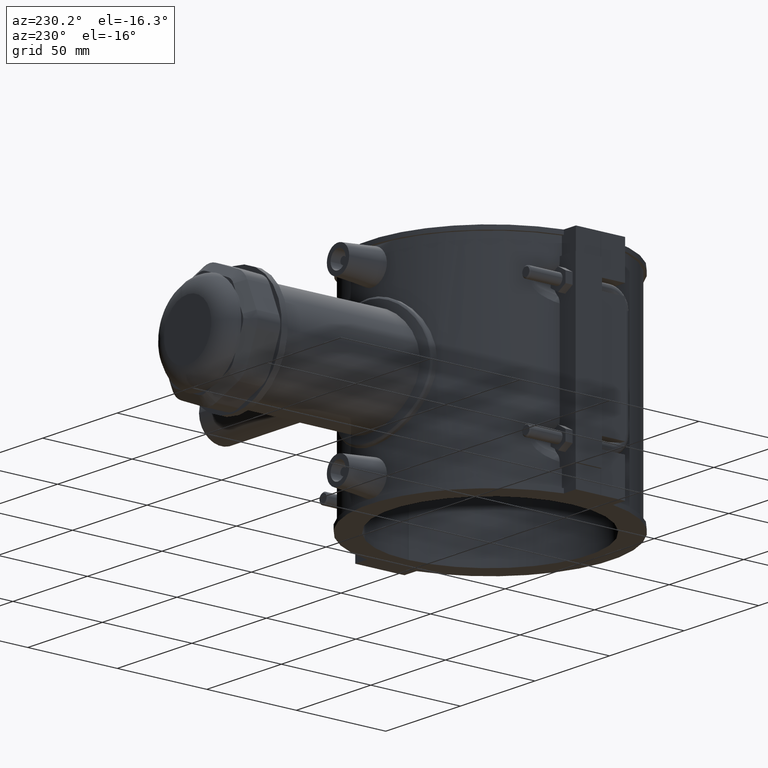
[diagram: clean part render]
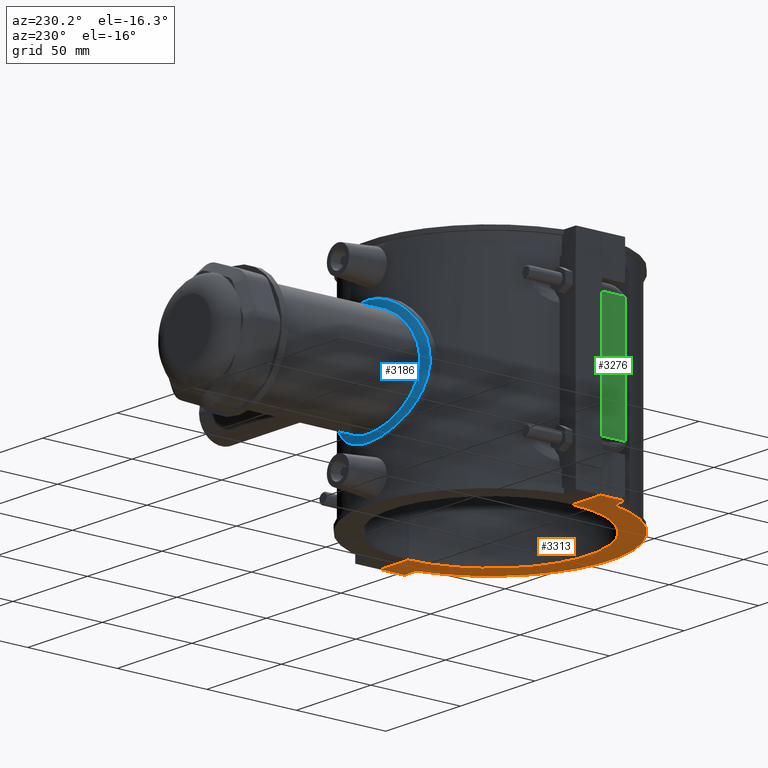
[diagram: same view with three faces highlighted in distinct colors, each labeled with its STEP entity id]
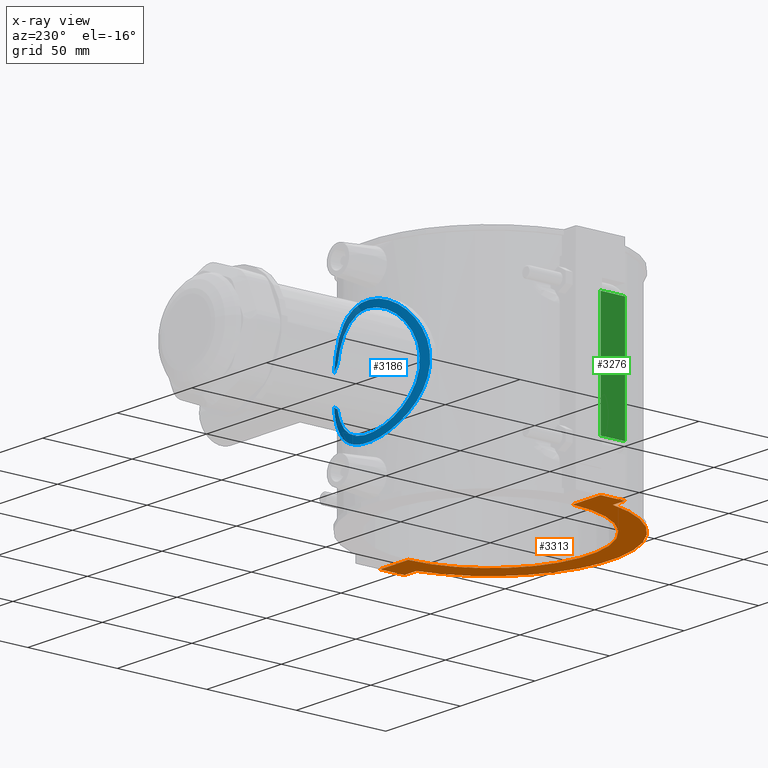
[diagram: x-ray of the same camera — body ghosted, the three highlighted faces saturated]
A machine part, auxiliary view with three faces highlighted in distinct colors.
The next image is the same camera in x-ray (body ghosted, the three faces saturated) — at least one of them is partly hidden behind the body in this view.
Their STEP definitions:

[orange] entity #3313 — the highlighted planar face has unit normal (0, 0, 1).
#124=LINE('',#5490,#411);
#143=LINE('',#5676,#430);
#269=LINE('',#6396,#556);
#310=LINE('',#6686,#597);
#315=LINE('',#6695,#602);
#318=LINE('',#6705,#605);
#411=VECTOR('',#3920,8.09916616612503);
#430=VECTOR('',#3973,8.09916616612502);
#556=VECTOR('',#4307,13.7);
#597=VECTOR('',#4444,19.0000227272774);
#602=VECTOR('',#4453,13.7);
#605=VECTOR('',#4466,19.0000227272775);
#721=PLANE('',#3607);
#772=CIRCLE('',#3424,67.32);
#837=CIRCLE('',#3605,55.);
#1071=FACE_OUTER_BOUND('',#1308,.T.);
#1308=EDGE_LOOP('',(#3011,#3012,#3013,#3014,#3015,#3016,#3017,#3018));
#1471=VERTEX_POINT('',#5419);
#1472=VERTEX_POINT('',#5420);
#1492=VERTEX_POINT('',#5488);
#1521=VERTEX_POINT('',#5675);
#1644=VERTEX_POINT('',#6394);
#1682=VERTEX_POINT('',#6683);
#1683=VERTEX_POINT('',#6685);
#1686=VERTEX_POINT('',#6699);
#1824=EDGE_CURVE('',#1471,#1472,#772,.T.);
#1848=EDGE_CURVE('',#1471,#1492,#124,.T.);
#1883=EDGE_CURVE('',#1521,#1472,#143,.T.);
#2064=EDGE_CURVE('',#1492,#1644,#269,.T.);
#2130=EDGE_CURVE('',#1683,#1682,#310,.T.);
#2135=EDGE_CURVE('',#1682,#1521,#315,.T.);
#2137=EDGE_CURVE('',#1686,#1683,#837,.T.);
#2140=EDGE_CURVE('',#1644,#1686,#318,.T.);
#3011=ORIENTED_EDGE('',*,*,#2130,.T.);
#3012=ORIENTED_EDGE('',*,*,#2135,.T.);
#3013=ORIENTED_EDGE('',*,*,#1883,.T.);
#3014=ORIENTED_EDGE('',*,*,#1824,.F.);
#3015=ORIENTED_EDGE('',*,*,#1848,.T.);
#3016=ORIENTED_EDGE('',*,*,#2064,.T.);
#3017=ORIENTED_EDGE('',*,*,#2140,.T.);
#3018=ORIENTED_EDGE('',*,*,#2137,.T.);
#3313=ADVANCED_FACE('',(#1071),#721,.F.);
#3424=AXIS2_PLACEMENT_3D('',#5421,#3887,#3888);
#3605=AXIS2_PLACEMENT_3D('',#6700,#4459,#4460);
#3607=AXIS2_PLACEMENT_3D('',#6704,#4464,#4465);
#3887=DIRECTION('center_axis',(0.,0.,1.));
#3888=DIRECTION('ref_axis',(-0.97891910032494,-0.204248366013072,0.));
#3920=DIRECTION('',(-1.,0.,0.));
#3973=DIRECTION('',(-1.,0.,0.));
#4307=DIRECTION('',(0.,1.,0.));
#4444=DIRECTION('',(1.,5.27449705533489E-17,0.));
#4453=DIRECTION('',(0.,-1.,0.));
#4459=DIRECTION('center_axis',(0.,0.,1.));
#4460=DIRECTION('ref_axis',(-1.,0.,0.));
#4464=DIRECTION('center_axis',(0.,0.,1.));
#4465=DIRECTION('ref_axis',(1.,0.,0.));
#4466=DIRECTION('',(1.,5.27449705533489E-17,0.));
#5419=CARTESIAN_POINT('',(-65.900833833875,-13.75,-59.));
#5420=CARTESIAN_POINT('',(65.900833833875,-13.75,-59.));
#5421=CARTESIAN_POINT('Origin',(0.,0.,-59.));
#5488=CARTESIAN_POINT('',(-74.,-13.75,-59.));
#5490=CARTESIAN_POINT('',(-74.,-13.75,-59.));
#5675=CARTESIAN_POINT('',(74.,-13.75,-59.));
#5676=CARTESIAN_POINT('',(64.5518202686803,-13.75,-59.));
#6394=CARTESIAN_POINT('',(-74.,-0.0500000000000078,-59.));
#6396=CARTESIAN_POINT('',(-74.,13.75,-59.));
#6683=CARTESIAN_POINT('',(74.,-0.05,-59.));
#6685=CARTESIAN_POINT('',(54.9999772727226,-0.050000000000001,-59.));
#6686=CARTESIAN_POINT('',(-72.0235519553924,-0.0500000000000077,-59.));
#6695=CARTESIAN_POINT('',(74.,-13.75,-59.));
#6699=CARTESIAN_POINT('',(-54.9999772727226,-0.0500000000000068,-59.));
#6700=CARTESIAN_POINT('Origin',(0.,0.,-59.));
#6704=CARTESIAN_POINT('Origin',(-70.0471039107848,-1.214036024795E-16,-59.));
#6705=CARTESIAN_POINT('',(-72.0235519553924,-0.0500000000000077,-59.));

[blue] entity #3186 — the highlighted cylindrical surface (partial cylindrical patch) has radius 68.64 mm, axis along (0, 0, -1).
#944=FACE_OUTER_BOUND('',#1142,.T.);
#1142=EDGE_LOOP('',(#2385,#2386,#2387,#2388));
#1323=B_SPLINE_CURVE_WITH_KNOTS('',3,(#4606,#4607,#4608,#4609,#4610,#4611),
 .UNSPECIFIED.,.F.,.F.,(4,2,4),(3.58212765097517,3.84092007126623,4.2018629553767),
 .UNSPECIFIED.);
#1327=B_SPLINE_CURVE_WITH_KNOTS('',3,(#4642,#4643,#4644,#4645,#4646,#4647),
 .UNSPECIFIED.,.F.,.F.,(4,2,4),(1.12879111958315,1.48973400369362,1.74852642303979),
 .UNSPECIFIED.);
#1338=B_SPLINE_CURVE_WITH_KNOTS('',3,(#4991,#4992,#4993,#4994,#4995,#4996,
#4997,#4998,#4999,#5000,#5001,#5002,#5003,#5004,#5005,#5006,#5007,#5008,
#5009,#5010,#5011,#5012,#5013,#5014,#5015,#5016,#5017,#5018,#5019,#5020,
#5021,#5022,#5023,#5024,#5025,#5026,#5027,#5028,#5029,#5030,#5031,#5032,
#5033,#5034,#5035,#5036,#5037,#5038,#5039,#5040,#5041,#5042,#5043,#5044,
#5045,#5046,#5047,#5048,#5049,#5050,#5051,#5052),.UNSPECIFIED.,.F.,.F.,
(4,2,2,2,2,2,2,2,2,2,2,2,2,2,2,2,2,2,2,2,2,2,2,2,2,2,2,2,2,2,4),(0.984238996678811,
1.07094999104106,1.60642498656158,2.14189998208211,2.67678046713176,3.21166095218141,
3.74654143723105,4.2814219222807,4.81630240733035,5.35118289237999,5.88606337742964,
6.42094386247929,6.95641885799982,7.49189385352034,8.02736884904087,8.5628438445614,
9.09831884008193,9.63379383560246,10.169268831123,10.7047438266435,11.2396243116932,
11.7745047967428,12.3093852817925,12.8442657668421,13.3791462518917,13.9140267369414,
14.448907221991,14.9837877070407,15.5192627025612,16.0547376980817,16.141448692444),
 .UNSPECIFIED.);
#1339=B_SPLINE_CURVE_WITH_KNOTS('',3,(#5060,#5061,#5062,#5063,#5064,#5065,
#5066,#5067,#5068,#5069,#5070,#5071,#5072,#5073,#5074,#5075,#5076,#5077,
#5078,#5079),.UNSPECIFIED.,.F.,.F.,(4,1,1,1,1,1,1,1,1,1,1,1,1,1,1,1,1,4),
(10.8826752994598,12.0326532739031,13.4040201504067,14.3182647347425,15.2325093190782,
16.146753903414,17.0609984877497,18.8894876564212,19.803732240757,20.7179768250927,
21.6322214094285,22.5464659937643,24.3749551624358,25.0606386006876,25.7463220389394,
27.117688915443,28.4890557919467,29.6390250325431),.UNSPECIFIED.);
#1385=VERTEX_POINT('',#4604);
#1386=VERTEX_POINT('',#4605);
#1389=VERTEX_POINT('',#4632);
#1390=VERTEX_POINT('',#4641);
#1694=EDGE_CURVE('',#1385,#1386,#1323,.T.);
#1698=EDGE_CURVE('',#1390,#1389,#1327,.T.);
#1809=EDGE_CURVE('',#1386,#1390,#1338,.T.);
#1812=EDGE_CURVE('',#1385,#1389,#1339,.T.);
#2385=ORIENTED_EDGE('',*,*,#1694,.T.);
#2386=ORIENTED_EDGE('',*,*,#1809,.T.);
#2387=ORIENTED_EDGE('',*,*,#1698,.T.);
#2388=ORIENTED_EDGE('',*,*,#1812,.F.);
#3101=CYLINDRICAL_SURFACE('',#3415,68.64);
#3186=ADVANCED_FACE('',(#944),#3101,.T.);
#3415=AXIS2_PLACEMENT_3D('',#5059,#3865,#3866);
#3865=DIRECTION('center_axis',(0.,0.,-1.));
#3866=DIRECTION('ref_axis',(1.,0.,0.));
#4604=CARTESIAN_POINT('',(31.5188204360374,60.9755160566106,7.46724324508663));
#4605=CARTESIAN_POINT('',(26.2264485236546,63.4320344765647,9.94866311803225));
#4606=CARTESIAN_POINT('Ctrl Pts',(31.5188204353698,60.9755160565527,7.46724324416768));
#4607=CARTESIAN_POINT('Ctrl Pts',(30.8650327347673,61.3134650969353,7.92092670113345));
#4608=CARTESIAN_POINT('Ctrl Pts',(30.1703873509176,61.6591128290836,8.32138514846382));
#4609=CARTESIAN_POINT('Ctrl Pts',(28.4278581528542,62.4865480733675,9.17893356501243));
#4610=CARTESIAN_POINT('Ctrl Pts',(27.3490759122359,62.9678757961625,9.59557679386871));
#4611=CARTESIAN_POINT('Ctrl Pts',(26.2264485236546,63.4320344765647,9.94866311803225));
#4632=CARTESIAN_POINT('',(31.5188204329857,60.9755160606682,-7.46724325571075));
#4641=CARTESIAN_POINT('',(26.2264485236546,63.4320344765647,-9.94866311803225));
#4642=CARTESIAN_POINT('Ctrl Pts',(26.2264485236546,63.4320344765647,-9.94866311803225));
#4643=CARTESIAN_POINT('Ctrl Pts',(27.3490759122359,62.9678757961625,-9.59557679386871));
#4644=CARTESIAN_POINT('Ctrl Pts',(28.4278581528542,62.4865480733675,-9.17893356501243));
#4645=CARTESIAN_POINT('Ctrl Pts',(30.1703873482608,61.6591128303452,-8.3213851497713));
#4646=CARTESIAN_POINT('Ctrl Pts',(30.8650327296942,61.3134650994603,-7.92092670405384));
#4647=CARTESIAN_POINT('Ctrl Pts',(31.5188204282094,60.975516060254,-7.46724324913645));
#4991=CARTESIAN_POINT('Ctrl Pts',(26.2264485236546,63.4320344765647,9.94866311803225));
#4992=CARTESIAN_POINT('Ctrl Pts',(26.1190794966835,63.4764270028668,10.2317070029727));
#4993=CARTESIAN_POINT('Ctrl Pts',(26.0071574065999,63.5223831196451,10.5129314095541));
#4994=CARTESIAN_POINT('Ctrl Pts',(25.1722044601463,63.8624436142823,12.5160298841102));
#4995=CARTESIAN_POINT('Ctrl Pts',(24.2809773807116,64.2111557025325,14.1634166312882));
#4996=CARTESIAN_POINT('Ctrl Pts',(22.2293189751007,64.949948089958,17.2053948363863));
#4997=CARTESIAN_POINT('Ctrl Pts',(21.0686712481424,65.3392918428761,18.6000191764229));
#4998=CARTESIAN_POINT('Ctrl Pts',(18.6013895854222,66.0840115530985,21.0673008391431));
#4999=CARTESIAN_POINT('Ctrl Pts',(17.207425337375,66.4664993345299,22.2277720225151));
#5000=CARTESIAN_POINT('Ctrl Pts',(14.1651134136769,67.1806563116482,24.2800102543657));
#5001=CARTESIAN_POINT('Ctrl Pts',(12.5167298978471,67.5117170012429,25.1719358773633));
#5002=CARTESIAN_POINT('Ctrl Pts',(9.06683376455748,68.0609505229705,26.6099120969118));
#5003=CARTESIAN_POINT('Ctrl Pts',(7.26220673460187,68.2791829111509,27.1571059765315));
#5004=CARTESIAN_POINT('Ctrl Pts',(3.62028607889232,68.5687975275982,27.8772591980051));
#5005=CARTESIAN_POINT('Ctrl Pts',(1.78293495016549,68.64,28.05));
#5006=CARTESIAN_POINT('Ctrl Pts',(-1.78293495016549,68.64,28.05));
#5007=CARTESIAN_POINT('Ctrl Pts',(-3.62028607889232,68.5687975275982,27.8772591980051));
#5008=CARTESIAN_POINT('Ctrl Pts',(-7.26220673460187,68.2791829111509,27.1571059765315));
#5009=CARTESIAN_POINT('Ctrl Pts',(-9.06683376455748,68.0609505229705,26.6099120969118));
#5010=CARTESIAN_POINT('Ctrl Pts',(-12.5167298978471,67.5117170012429,25.1719358773633));
#5011=CARTESIAN_POINT('Ctrl Pts',(-14.1651134136769,67.1806563116482,24.2800102543657));
#5012=CARTESIAN_POINT('Ctrl Pts',(-17.207425337375,66.4664993345299,22.2277720225151));
#5013=CARTESIAN_POINT('Ctrl Pts',(-18.6013895854222,66.0840115530985,21.0673008391431));
#5014=CARTESIAN_POINT('Ctrl Pts',(-21.0686712481424,65.3392918428761,18.6000191764229));
#5015=CARTESIAN_POINT('Ctrl Pts',(-22.2293189751007,64.949948089958,17.2053948363863));
#5016=CARTESIAN_POINT('Ctrl Pts',(-24.2809773807116,64.2111557025325,14.1634166312882));
#5017=CARTESIAN_POINT('Ctrl Pts',(-25.1722044601463,63.8624436142823,12.5160298841102));
#5018=CARTESIAN_POINT('Ctrl Pts',(-26.6093838005115,63.2771077346465,9.06815685536448));
#5019=CARTESIAN_POINT('Ctrl Pts',(-27.1564754277083,63.0407014702692,7.26452832100173));
#5020=CARTESIAN_POINT('Ctrl Pts',(-27.8769038658955,62.7254528142853,3.6229490510227));
#5021=CARTESIAN_POINT('Ctrl Pts',(-28.05,62.6470039187829,1.78491665173509));
#5022=CARTESIAN_POINT('Ctrl Pts',(-28.05,62.6470039187829,-1.78491665173509));
#5023=CARTESIAN_POINT('Ctrl Pts',(-27.8769038658955,62.7254528142853,-3.6229490510227));
#5024=CARTESIAN_POINT('Ctrl Pts',(-27.1564754277083,63.0407014702692,-7.26452832100173));
#5025=CARTESIAN_POINT('Ctrl Pts',(-26.6093838005115,63.2771077346465,-9.06815685536448));
#5026=CARTESIAN_POINT('Ctrl Pts',(-25.1722044601463,63.8624436142823,-12.5160298841102));
#5027=CARTESIAN_POINT('Ctrl Pts',(-24.2809773807116,64.2111557025325,-14.1634166312882));
#5028=CARTESIAN_POINT('Ctrl Pts',(-22.2293189751007,64.949948089958,-17.2053948363864));
#5029=CARTESIAN_POINT('Ctrl Pts',(-21.0686712481425,65.3392918428761,-18.6000191764229));
#5030=CARTESIAN_POINT('Ctrl Pts',(-18.6013895854222,66.0840115530985,-21.0673008391431));
#5031=CARTESIAN_POINT('Ctrl Pts',(-17.207425337375,66.4664993345299,-22.2277720225151));
#5032=CARTESIAN_POINT('Ctrl Pts',(-14.1651134136769,67.1806563116482,-24.2800102543657));
#5033=CARTESIAN_POINT('Ctrl Pts',(-12.5167298978471,67.5117170012429,-25.1719358773633));
#5034=CARTESIAN_POINT('Ctrl Pts',(-9.06683376455749,68.0609505229705,-26.6099120969118));
#5035=CARTESIAN_POINT('Ctrl Pts',(-7.26220673460188,68.2791829111509,-27.1571059765315));
#5036=CARTESIAN_POINT('Ctrl Pts',(-3.62028607889233,68.5687975275982,-27.8772591980051));
#5037=CARTESIAN_POINT('Ctrl Pts',(-1.7829349501655,68.64,-28.05));
#5038=CARTESIAN_POINT('Ctrl Pts',(1.78293495016549,68.64,-28.05));
#5039=CARTESIAN_POINT('Ctrl Pts',(3.62028607889233,68.5687975275982,-27.8772591980051));
#5040=CARTESIAN_POINT('Ctrl Pts',(7.26220673460188,68.2791829111509,-27.1571059765315));
#5041=CARTESIAN_POINT('Ctrl Pts',(9.06683376455749,68.0609505229705,-26.6099120969118));
#5042=CARTESIAN_POINT('Ctrl Pts',(12.5167298978471,67.5117170012429,-25.1719358773633));
#5043=CARTESIAN_POINT('Ctrl Pts',(14.1651134136769,67.1806563116482,-24.2800102543657));
#5044=CARTESIAN_POINT('Ctrl Pts',(17.207425337375,66.4664993345299,-22.2277720225151));
#5045=CARTESIAN_POINT('Ctrl Pts',(18.6013895854222,66.0840115530985,-21.0673008391431));
#5046=CARTESIAN_POINT('Ctrl Pts',(21.0686712481425,65.3392918428761,-18.6000191764229));
#5047=CARTESIAN_POINT('Ctrl Pts',(22.2293189751007,64.9499480899581,-17.2053948363863));
#5048=CARTESIAN_POINT('Ctrl Pts',(24.2809773807116,64.2111557025325,-14.1634166312882));
#5049=CARTESIAN_POINT('Ctrl Pts',(25.1722044601463,63.8624436142823,-12.5160298841102));
#5050=CARTESIAN_POINT('Ctrl Pts',(26.0071574065999,63.5223831196451,-10.5129314095541));
#5051=CARTESIAN_POINT('Ctrl Pts',(26.1190794966835,63.4764270028667,-10.2317070029727));
#5052=CARTESIAN_POINT('Ctrl Pts',(26.2264485236546,63.4320344765647,-9.94866311803225));
#5059=CARTESIAN_POINT('Origin',(0.,0.,59.));
#5060=CARTESIAN_POINT('Ctrl Pts',(31.5192077667291,60.9762632638612,7.46724297974566));
#5061=CARTESIAN_POINT('Ctrl Pts',(30.6085376011816,61.4496467688903,11.1797641432319));
#5062=CARTESIAN_POINT('Ctrl Pts',(27.1427548591972,63.1952894097139,18.8755436063217));
#5063=CARTESIAN_POINT('Ctrl Pts',(18.8570848039296,66.2692789600066,26.7647223941954));
#5064=CARTESIAN_POINT('Ctrl Pts',(8.96847845883891,68.2533221561686,31.1150437768292));
#5065=CARTESIAN_POINT('Ctrl Pts',(-0.38301199294819,68.858945692401,32.3463275578139));
#5066=CARTESIAN_POINT('Ctrl Pts',(-9.69615250056752,68.1500244763552,30.8999156729681));
#5067=CARTESIAN_POINT('Ctrl Pts',(-20.8582450976433,65.7930993537413,25.6923650088037));
#5068=CARTESIAN_POINT('Ctrl Pts',(-28.979384211938,62.3231732330211,16.4074720614361));
#5069=CARTESIAN_POINT('Ctrl Pts',(-32.5291279450512,60.4422518939277,4.65565568912775));
#5070=CARTESIAN_POINT('Ctrl Pts',(-32.5340737390055,60.4451782707926,-4.6562044244405));
#5071=CARTESIAN_POINT('Ctrl Pts',(-29.8594046284882,61.8459472133257,-13.4692247949289));
#5072=CARTESIAN_POINT('Ctrl Pts',(-23.2878537483614,64.8105901736445,-23.576259001617));
#5073=CARTESIAN_POINT('Ctrl Pts',(-13.4717706135693,67.734525240656,-29.9877442525717));
#5074=CARTESIAN_POINT('Ctrl Pts',(-2.73022714887316,68.7012914826142,-32.0369644297455));
#5075=CARTESIAN_POINT('Ctrl Pts',(6.67342474431359,68.6033806084838,-31.818835765843));
#5076=CARTESIAN_POINT('Ctrl Pts',(17.766691819956,66.685213991238,-27.8216526181605));
#5077=CARTESIAN_POINT('Ctrl Pts',(27.1373569660573,63.192441415652,-18.8724184853979));
#5078=CARTESIAN_POINT('Ctrl Pts',(30.6076076424797,61.4491747995606,-11.1792826041335));
#5079=CARTESIAN_POINT('Ctrl Pts',(31.5189713468504,60.9761585177099,-7.46719933441202));

[green] entity #3276 — the highlighted planar face has unit normal (-1, 0, 0).
#250=LINE('',#6357,#537);
#253=LINE('',#6362,#540);
#255=LINE('',#6366,#542);
#270=LINE('',#6398,#557);
#537=VECTOR('',#4266,13.7);
#540=VECTOR('',#4271,64.8);
#542=VECTOR('',#4275,13.7);
#557=VECTOR('',#4310,64.8);
#698=PLANE('',#3553);
#1034=FACE_OUTER_BOUND('',#1260,.T.);
#1260=EDGE_LOOP('',(#2828,#2829,#2830,#2831));
#1634=VERTEX_POINT('',#6354);
#1635=VERTEX_POINT('',#6356);
#1636=VERTEX_POINT('',#6360);
#1637=VERTEX_POINT('',#6364);
#2043=EDGE_CURVE('',#1635,#1634,#250,.T.);
#2046=EDGE_CURVE('',#1634,#1636,#253,.T.);
#2048=EDGE_CURVE('',#1636,#1637,#255,.T.);
#2065=EDGE_CURVE('',#1637,#1635,#270,.T.);
#2828=ORIENTED_EDGE('',*,*,#2048,.T.);
#2829=ORIENTED_EDGE('',*,*,#2065,.T.);
#2830=ORIENTED_EDGE('',*,*,#2043,.T.);
#2831=ORIENTED_EDGE('',*,*,#2046,.T.);
#3276=ADVANCED_FACE('',(#1034),#698,.T.);
#3553=AXIS2_PLACEMENT_3D('',#6397,#4308,#4309);
#4266=DIRECTION('',(0.,-1.,0.));
#4271=DIRECTION('',(0.,0.,1.));
#4275=DIRECTION('',(0.,1.,0.));
#4308=DIRECTION('center_axis',(-1.,0.,0.));
#4309=DIRECTION('ref_axis',(0.,-1.,0.));
#4310=DIRECTION('',(0.,0.,-1.));
#6354=CARTESIAN_POINT('',(-74.,-13.75,-32.4));
#6356=CARTESIAN_POINT('',(-74.,-0.0500000000000078,-32.4));
#6357=CARTESIAN_POINT('',(-74.,3.33066907387547E-15,-32.4));
#6360=CARTESIAN_POINT('',(-74.,-13.75,32.4));
#6362=CARTESIAN_POINT('',(-74.,-13.75,0.));
#6364=CARTESIAN_POINT('',(-74.,-0.0500000000000078,32.4));
#6366=CARTESIAN_POINT('',(-74.,3.33066907387547E-15,32.4));
#6397=CARTESIAN_POINT('Origin',(-74.,13.75,0.));
#6398=CARTESIAN_POINT('',(-74.,-0.0500000000000078,-29.5));